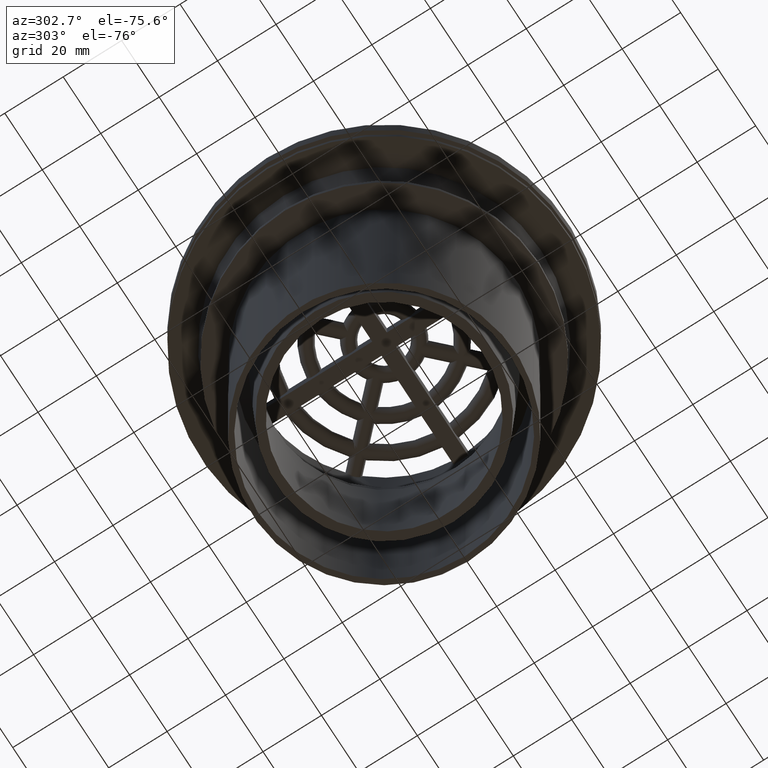
[diagram: clean part render]
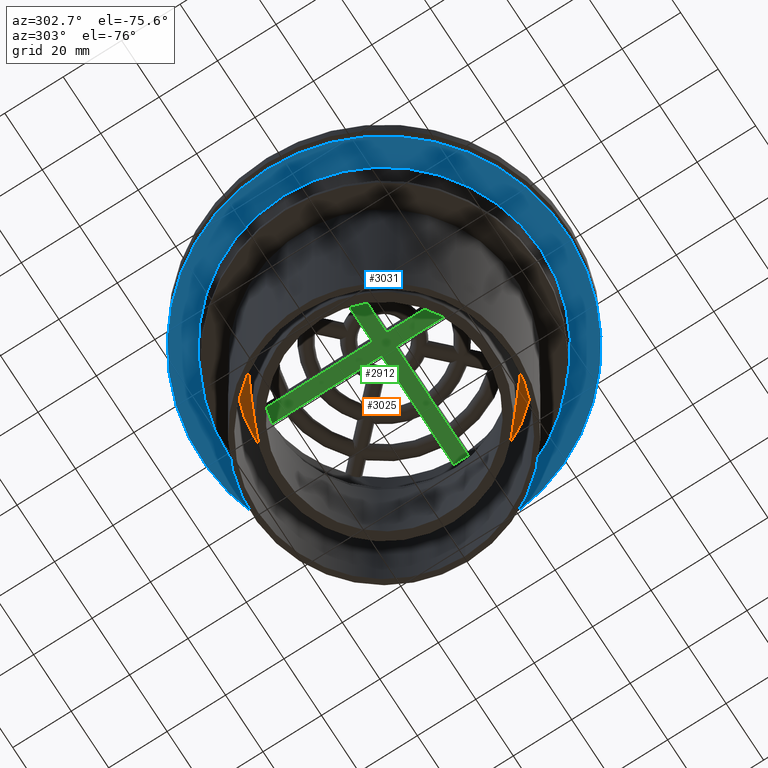
[diagram: same view with three faces highlighted in distinct colors, each labeled with its STEP entity id]
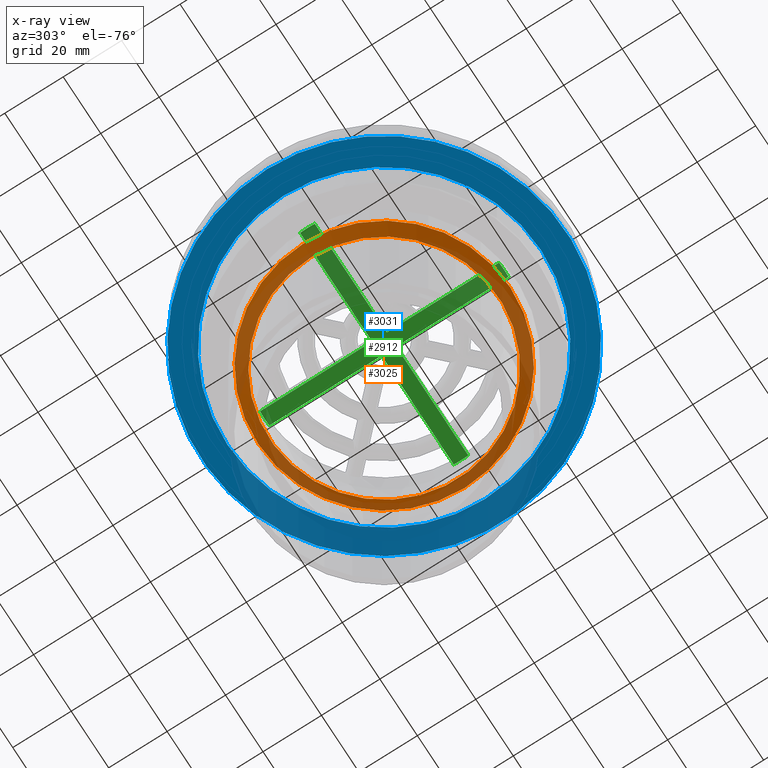
[diagram: x-ray of the same camera — body ghosted, the three highlighted faces saturated]
A machine part, auxiliary view with three faces highlighted in distinct colors.
The next image is the same camera in x-ray (body ghosted, the three faces saturated) — at least one of them is partly hidden behind the body in this view.
Their STEP definitions:

[orange] entity #3025 — the highlighted conical surface has half-angle 53.13 deg.
#22=CONICAL_SURFACE('',#3366,39.143,0.927295218001613);
#1460=ORIENTED_EDGE('',*,*,#1910,.T.);
#1461=ORIENTED_EDGE('',*,*,#1909,.F.);
#1909=EDGE_CURVE('',#2210,#2210,#2379,.T.);
#1910=EDGE_CURVE('',#2211,#2211,#2380,.T.);
#2210=VERTEX_POINT('',#5450);
#2211=VERTEX_POINT('',#5453);
#2379=CIRCLE('',#3365,39.143);
#2380=CIRCLE('',#3367,43.143);
#2597=EDGE_LOOP('',(#1460));
#2598=EDGE_LOOP('',(#1461));
#2825=FACE_BOUND('',#2597,.T.);
#2826=FACE_BOUND('',#2598,.T.);
#3025=ADVANCED_FACE('',(#2825,#2826),#22,.T.);
#3365=AXIS2_PLACEMENT_3D('',#5449,#4176,#4177);
#3366=AXIS2_PLACEMENT_3D('',#5451,#4178,#4179);
#3367=AXIS2_PLACEMENT_3D('',#5452,#4180,#4181);
#4176=DIRECTION('',(0.,0.,-1.));
#4177=DIRECTION('',(-1.,0.,0.));
#4178=DIRECTION('',(0.,0.,1.));
#4179=DIRECTION('',(1.,0.,0.));
#4180=DIRECTION('',(0.,0.,-1.));
#4181=DIRECTION('',(-1.,0.,0.));
#5449=CARTESIAN_POINT('',(0.,0.,-39.));
#5450=CARTESIAN_POINT('',(-39.143,0.,-39.));
#5451=CARTESIAN_POINT('',(0.,0.,-39.));
#5452=CARTESIAN_POINT('',(0.,0.,-36.));
#5453=CARTESIAN_POINT('',(-43.143,0.,-36.));

[blue] entity #3031 — the highlighted conical surface has half-angle 79.348 deg.
#25=CONICAL_SURFACE('',#3378,53.653,1.38488199406689);
#1472=ORIENTED_EDGE('',*,*,#1916,.T.);
#1473=ORIENTED_EDGE('',*,*,#1915,.F.);
#1915=EDGE_CURVE('',#2216,#2216,#2385,.T.);
#1916=EDGE_CURVE('',#2217,#2217,#2386,.T.);
#2216=VERTEX_POINT('',#5468);
#2217=VERTEX_POINT('',#5471);
#2385=CIRCLE('',#3377,53.653);
#2386=CIRCLE('',#3379,62.5);
#2609=EDGE_LOOP('',(#1472));
#2610=EDGE_LOOP('',(#1473));
#2837=FACE_BOUND('',#2609,.T.);
#2838=FACE_BOUND('',#2610,.T.);
#3031=ADVANCED_FACE('',(#2837,#2838),#25,.T.);
#3377=AXIS2_PLACEMENT_3D('',#5467,#4200,#4201);
#3378=AXIS2_PLACEMENT_3D('',#5469,#4202,#4203);
#3379=AXIS2_PLACEMENT_3D('',#5470,#4204,#4205);
#4200=DIRECTION('',(0.,0.,-1.));
#4201=DIRECTION('',(-1.,0.,0.));
#4202=DIRECTION('',(0.,0.,1.));
#4203=DIRECTION('',(1.,0.,0.));
#4204=DIRECTION('',(0.,0.,-1.));
#4205=DIRECTION('',(-1.,0.,0.));
#5467=CARTESIAN_POINT('',(0.,0.,-14.848));
#5468=CARTESIAN_POINT('',(-53.653,0.,-14.848));
#5469=CARTESIAN_POINT('',(0.,0.,-14.848));
#5470=CARTESIAN_POINT('',(0.,0.,-13.184));
#5471=CARTESIAN_POINT('',(-62.5,0.,-13.184));

[green] entity #2912 — the highlighted planar face has unit normal (0, 0, 1).
#35=LINE('',#4710,#237);
#36=LINE('',#4712,#238);
#37=LINE('',#4713,#239);
#38=LINE('',#4715,#240);
#39=LINE('',#4716,#241);
#40=LINE('',#4718,#242);
#41=LINE('',#4719,#243);
#42=LINE('',#4721,#244);
#237=VECTOR('',#3532,1000.);
#238=VECTOR('',#3533,1000.);
#239=VECTOR('',#3534,1000.);
#240=VECTOR('',#3535,1000.);
#241=VECTOR('',#3536,1000.);
#242=VECTOR('',#3537,1000.);
#243=VECTOR('',#3538,1000.);
#244=VECTOR('',#3539,1000.);
#709=ORIENTED_EDGE('',*,*,#1503,.F.);
#710=ORIENTED_EDGE('',*,*,#1583,.T.);
#711=ORIENTED_EDGE('',*,*,#1584,.T.);
#712=ORIENTED_EDGE('',*,*,#1497,.F.);
#713=ORIENTED_EDGE('',*,*,#1585,.T.);
#714=ORIENTED_EDGE('',*,*,#1586,.T.);
#715=ORIENTED_EDGE('',*,*,#1515,.F.);
#716=ORIENTED_EDGE('',*,*,#1587,.T.);
#717=ORIENTED_EDGE('',*,*,#1588,.T.);
#718=ORIENTED_EDGE('',*,*,#1509,.F.);
#719=ORIENTED_EDGE('',*,*,#1589,.T.);
#720=ORIENTED_EDGE('',*,*,#1590,.T.);
#1497=EDGE_CURVE('',#1936,#1937,#2229,.T.);
#1503=EDGE_CURVE('',#1942,#1943,#2232,.T.);
#1509=EDGE_CURVE('',#1948,#1949,#2235,.T.);
#1515=EDGE_CURVE('',#1954,#1955,#2238,.T.);
#1583=EDGE_CURVE('',#1942,#2018,#35,.T.);
#1584=EDGE_CURVE('',#2018,#1937,#36,.T.);
#1585=EDGE_CURVE('',#1936,#2019,#37,.T.);
#1586=EDGE_CURVE('',#2019,#1955,#38,.T.);
#1587=EDGE_CURVE('',#1954,#2020,#39,.T.);
#1588=EDGE_CURVE('',#2020,#1949,#40,.T.);
#1589=EDGE_CURVE('',#1948,#2021,#41,.T.);
#1590=EDGE_CURVE('',#2021,#1943,#42,.T.);
#1936=VERTEX_POINT('',#4301);
#1937=VERTEX_POINT('',#4303);
#1942=VERTEX_POINT('',#4319);
#1943=VERTEX_POINT('',#4321);
#1948=VERTEX_POINT('',#4337);
#1949=VERTEX_POINT('',#4339);
#1954=VERTEX_POINT('',#4355);
#1955=VERTEX_POINT('',#4357);
#2018=VERTEX_POINT('',#4711);
#2019=VERTEX_POINT('',#4714);
#2020=VERTEX_POINT('',#4717);
#2021=VERTEX_POINT('',#4720);
#2229=CIRCLE('',#3089,41.);
#2232=CIRCLE('',#3092,41.);
#2235=CIRCLE('',#3095,41.);
#2238=CIRCLE('',#3098,41.);
#2413=EDGE_LOOP('',(#709,#710,#711,#712,#713,#714,#715,#716,#717,#718,#719,
#720));
#2641=FACE_BOUND('',#2413,.T.);
#2847=PLANE('',#3139);
#2912=ADVANCED_FACE('',(#2641),#2847,.F.);
#3089=AXIS2_PLACEMENT_3D('',#4302,#3423,#3424);
#3092=AXIS2_PLACEMENT_3D('',#4320,#3431,#3432);
#3095=AXIS2_PLACEMENT_3D('',#4338,#3439,#3440);
#3098=AXIS2_PLACEMENT_3D('',#4356,#3447,#3448);
#3139=AXIS2_PLACEMENT_3D('',#4709,#3530,#3531);
#3423=DIRECTION('',(0.,0.,1.));
#3424=DIRECTION('',(1.,0.,0.));
#3431=DIRECTION('',(0.,0.,1.));
#3432=DIRECTION('',(1.,0.,0.));
#3439=DIRECTION('',(0.,0.,1.));
#3440=DIRECTION('',(1.,0.,0.));
#3447=DIRECTION('',(0.,0.,1.));
#3448=DIRECTION('',(1.,0.,0.));
#3530=DIRECTION('',(0.,0.,1.));
#3531=DIRECTION('',(1.,0.,0.));
#3532=DIRECTION('',(0.,-1.,0.));
#3533=DIRECTION('',(1.,-6.77208225649506E-17,0.));
#3534=DIRECTION('',(-1.,6.77208225649506E-17,0.));
#3535=DIRECTION('',(0.,-1.,0.));
#3536=DIRECTION('',(0.,1.,0.));
#3537=DIRECTION('',(-1.,6.77208225649506E-17,0.));
#3538=DIRECTION('',(1.,-6.77208225649506E-17,0.));
#3539=DIRECTION('',(0.,1.,0.));
#4301=CARTESIAN_POINT('',(40.9237095092808,-2.50000000000003,0.));
#4302=CARTESIAN_POINT('',(0.,0.,0.));
#4303=CARTESIAN_POINT('',(40.9237095092808,2.5,0.));
#4319=CARTESIAN_POINT('',(2.5,40.9237095092808,0.));
#4320=CARTESIAN_POINT('',(0.,0.,0.));
#4321=CARTESIAN_POINT('',(-2.5,40.9237095092808,0.));
#4337=CARTESIAN_POINT('',(-40.9237095092808,2.5,0.));
#4338=CARTESIAN_POINT('',(0.,0.,0.));
#4339=CARTESIAN_POINT('',(-40.9237095092808,-2.49999999999999,0.));
#4355=CARTESIAN_POINT('',(-2.50000000000002,-40.9237095092808,0.));
#4356=CARTESIAN_POINT('',(0.,0.,0.));
#4357=CARTESIAN_POINT('',(2.5,-40.9237095092808,0.));
#4709=CARTESIAN_POINT('',(0.,0.,0.));
#4710=CARTESIAN_POINT('',(2.5,40.9237095092808,0.));
#4711=CARTESIAN_POINT('',(2.5,2.5,0.));
#4712=CARTESIAN_POINT('',(2.5,2.5,0.));
#4713=CARTESIAN_POINT('',(40.9237095092808,-2.5,0.));
#4714=CARTESIAN_POINT('',(2.5,-2.5,0.));
#4715=CARTESIAN_POINT('',(2.5,-2.5,0.));
#4716=CARTESIAN_POINT('',(-2.5,-40.9237095092808,0.));
#4717=CARTESIAN_POINT('',(-2.5,-2.5,0.));
#4718=CARTESIAN_POINT('',(-2.5,-2.5,0.));
#4719=CARTESIAN_POINT('',(-40.9237095092808,2.5,0.));
#4720=CARTESIAN_POINT('',(-2.5,2.5,0.));
#4721=CARTESIAN_POINT('',(-2.5,2.5,0.));